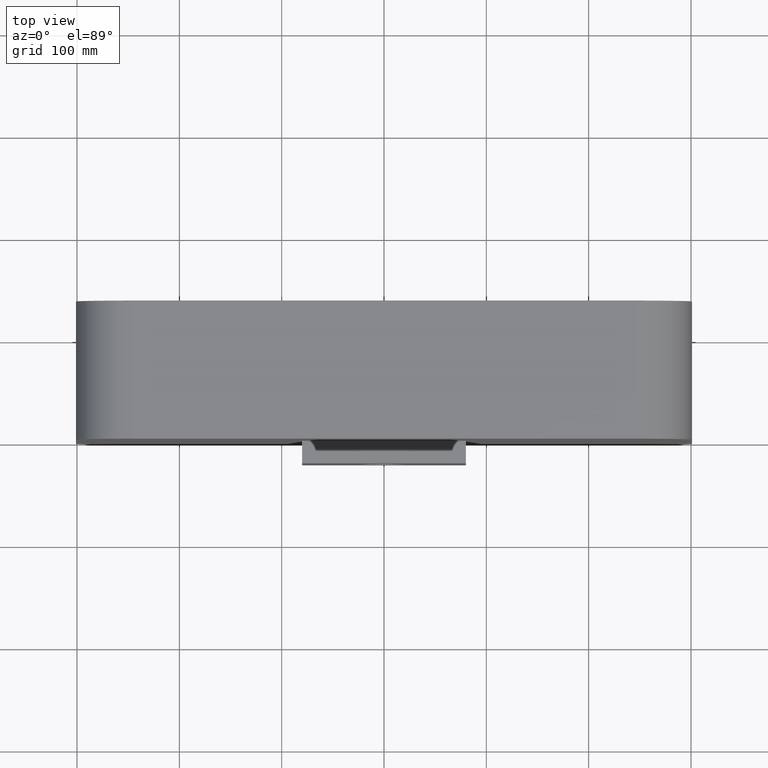
[diagram: clean part render]
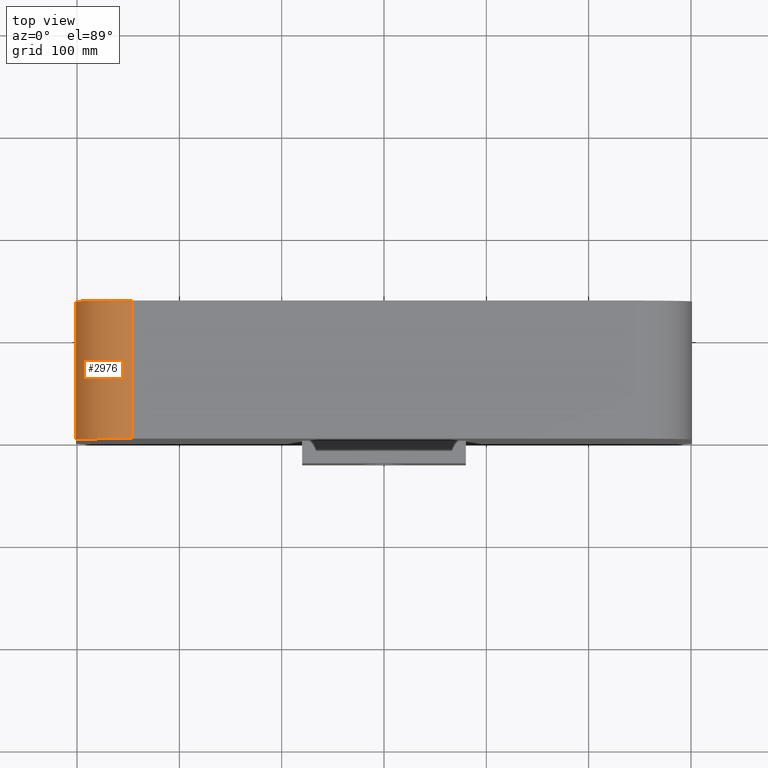
[diagram: same view with one face highlighted and labeled with its STEP entity id]
A machine part, top view. The second image highlights one B-rep face of the part: STEP entity #2976.
In plain terms, the highlighted cylindrical surface (partial cylindrical patch) has radius 55 mm, axis along (-0, -1, -0).
Its self-contained STEP definition (entity closure, byte-faithful):
#47 = CYLINDRICAL_SURFACE ( 'NONE', #568, 54.99999999999997900 ) ;
#66 = FACE_OUTER_BOUND ( 'NONE', #1956, .T. ) ;
#213 = ORIENTED_EDGE ( 'NONE', *, *, #3829, .T. ) ;
#218 = CIRCLE ( 'NONE', #1211, 54.99999999999996400 ) ;
#230 = CARTESIAN_POINT ( 'NONE',  ( -246.0000000000000900, 0.0000000000000000000, 175.9999999999999700 ) ) ;
#568 = AXIS2_PLACEMENT_3D ( 'NONE', #1578, #1506, #1533 ) ;
#572 = EDGE_CURVE ( 'NONE', #3758, #2509, #3542, .T. ) ;
#579 = DIRECTION ( 'NONE',  ( -0.0000000000000000000, -1.000000000000000000, -0.0000000000000000000 ) ) ;
#901 = VECTOR ( 'NONE', #579, 1000.000000000000000 ) ;
#915 = ORIENTED_EDGE ( 'NONE', *, *, #3578, .F. ) ;
#952 = LINE ( 'NONE', #1008, #901 ) ;
#1008 = CARTESIAN_POINT ( 'NONE',  ( -246.0000000000000900, 180.0000000000000000, 175.9999999999999700 ) ) ;
#1125 = ORIENTED_EDGE ( 'NONE', *, *, #572, .T. ) ;
#1156 = CARTESIAN_POINT ( 'NONE',  ( -301.0000000000000600, 0.0000000000000000000, 120.9999999999999600 ) ) ;
#1211 = AXIS2_PLACEMENT_3D ( 'NONE', #1990, #3049, #1632 ) ;
#1294 = VERTEX_POINT ( 'NONE', #230 ) ;
#1394 = EDGE_CURVE ( 'NONE', #3758, #3255, #2595, .T. ) ;
#1506 = DIRECTION ( 'NONE',  ( -0.0000000000000000000, -1.000000000000000000, -0.0000000000000000000 ) ) ;
#1516 = ORIENTED_EDGE ( 'NONE', *, *, #1394, .F. ) ;
#1533 = DIRECTION ( 'NONE',  ( 0.0000000000000000000, 0.0000000000000000000, -1.000000000000000000 ) ) ;
#1578 = CARTESIAN_POINT ( 'NONE',  ( -246.0000000000000900, 180.0000000000000000, 120.9999999999999700 ) ) ;
#1632 = DIRECTION ( 'NONE',  ( 0.0000000000000000000, 0.0000000000000000000, 1.000000000000000000 ) ) ;
#1955 = DIRECTION ( 'NONE',  ( 0.0000000000000000000, 0.0000000000000000000, 1.000000000000000000 ) ) ;
#1956 = EDGE_LOOP ( 'NONE', ( #1516, #1125, #213, #915 ) ) ;
#1990 = CARTESIAN_POINT ( 'NONE',  ( -246.0000000000000900, 0.0000000000000000000, 120.9999999999999700 ) ) ;
#2109 = CARTESIAN_POINT ( 'NONE',  ( -246.0000000000000900, 135.0000000000000000, 120.9999999999999700 ) ) ;
#2283 = DIRECTION ( 'NONE',  ( 0.0000000000000000000, 1.000000000000000000, 0.0000000000000000000 ) ) ;
#2509 = VERTEX_POINT ( 'NONE', #1156 ) ;
#2595 = CIRCLE ( 'NONE', #3117, 54.99999999999996400 ) ;
#2871 = CARTESIAN_POINT ( 'NONE',  ( -301.0000000000000600, 135.0000000000000000, 120.9999999999999600 ) ) ;
#2944 = CARTESIAN_POINT ( 'NONE',  ( -246.0000000000000900, 135.0000000000000000, 175.9999999999999400 ) ) ;
#2976 = ADVANCED_FACE ( 'NONE', ( #66 ), #47, .T. ) ;
#3049 = DIRECTION ( 'NONE',  ( 0.0000000000000000000, 1.000000000000000000, 0.0000000000000000000 ) ) ;
#3117 = AXIS2_PLACEMENT_3D ( 'NONE', #2109, #2283, #1955 ) ;
#3196 = DIRECTION ( 'NONE',  ( -0.0000000000000000000, -1.000000000000000000, -0.0000000000000000000 ) ) ;
#3255 = VERTEX_POINT ( 'NONE', #2944 ) ;
#3523 = VECTOR ( 'NONE', #3196, 1000.000000000000000 ) ;
#3542 = LINE ( 'NONE', #3622, #3523 ) ;
#3578 = EDGE_CURVE ( 'NONE', #3255, #1294, #952, .T. ) ;
#3622 = CARTESIAN_POINT ( 'NONE',  ( -301.0000000000000600, 180.0000000000000000, 120.9999999999999600 ) ) ;
#3758 = VERTEX_POINT ( 'NONE', #2871 ) ;
#3829 = EDGE_CURVE ( 'NONE', #2509, #1294, #218, .T. ) ;